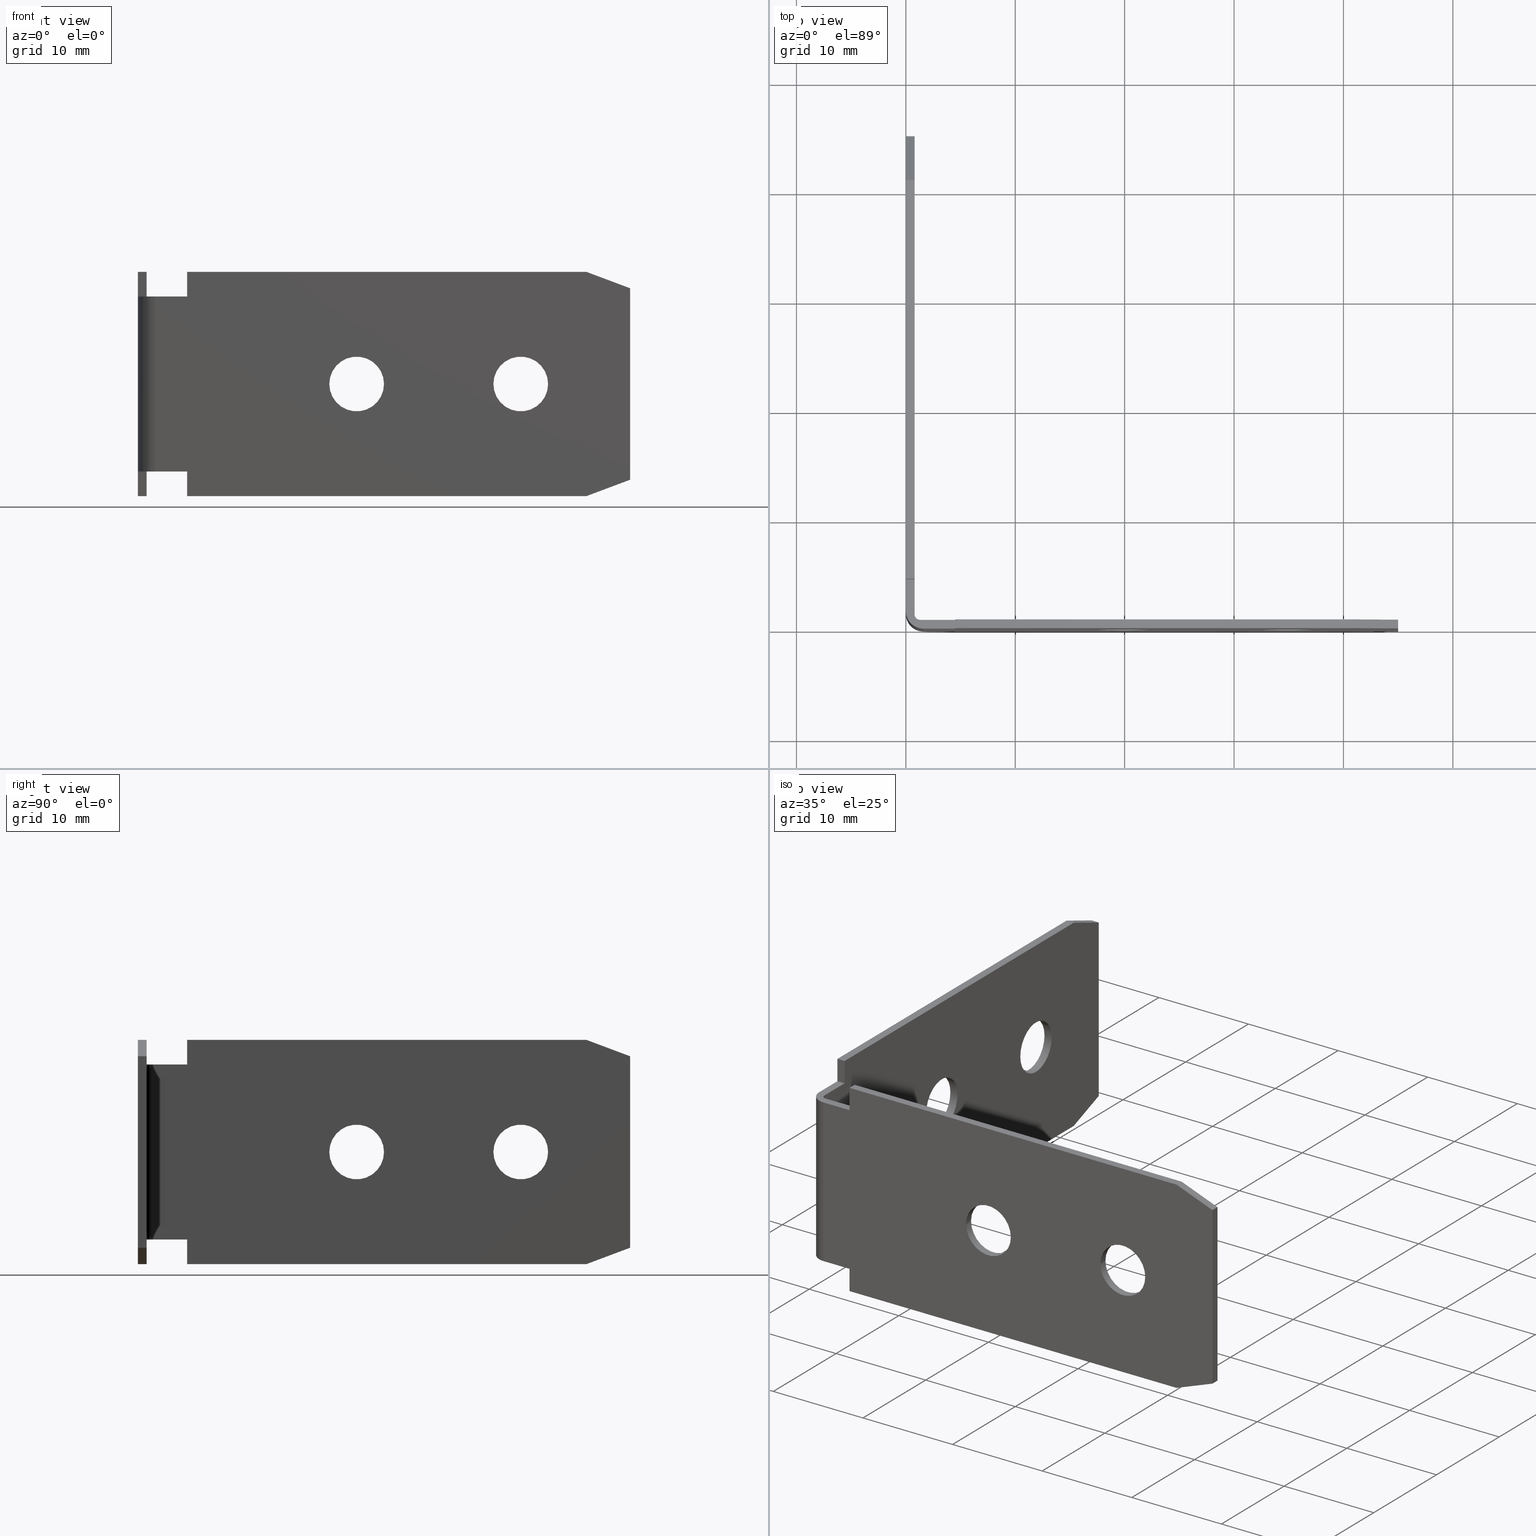
[diagram: canonical four-view strip — front | top / right | iso, engineering-drawing reading convention]
A machine part, canonical four-view strip (front | top / right | iso — engineering-drawing reading convention). The complete STEP part file that produces these views, byte-faithful:
ISO-10303-21;
HEADER;
/* Generated by software containing ST-Developer
 * from STEP Tools, Inc. (www.steptools.com) 
 */

FILE_DESCRIPTION(
/* description */ ('Befestigungslasche neu'),
/* implementation_level */ '2;1');

FILE_NAME(
/* name */ '100002675.stp',
/* time_stamp */ '2024-01-18T08:40:48+01:00',
/* author */ ('selema'),
/* organization */ (''),
/* preprocessor_version */ 'ST-DEVELOPER v20',
/* originating_system */ 'Autodesk Inventor 2024',
/* authorisation */ '');

FILE_SCHEMA (('AUTOMOTIVE_DESIGN { 1 0 10303 214 3 1 1 }'));
ENDSEC;

DATA;
#10=MECHANICAL_DESIGN_GEOMETRIC_PRESENTATION_REPRESENTATION('',(#13),#880);
#11=SHAPE_REPRESENTATION_RELATIONSHIP('SRR','None',#887,#12);
#12=ADVANCED_BREP_SHAPE_REPRESENTATION('',(#14),#879);
#13=STYLED_ITEM('',(#896),#14);
#14=MANIFOLD_SOLID_BREP('Volumenk\X\F6rper1',#531);
#15=FACE_BOUND('',#72,.T.);
#16=FACE_BOUND('',#73,.T.);
#17=FACE_BOUND('',#76,.T.);
#18=FACE_BOUND('',#77,.T.);
#19=FACE_BOUND('',#87,.T.);
#20=FACE_BOUND('',#88,.T.);
#21=FACE_BOUND('',#93,.T.);
#22=FACE_BOUND('',#94,.T.);
#23=PLANE('',#557);
#24=PLANE('',#559);
#25=PLANE('',#564);
#26=PLANE('',#575);
#27=PLANE('',#576);
#28=PLANE('',#577);
#29=PLANE('',#578);
#30=PLANE('',#579);
#31=PLANE('',#580);
#32=PLANE('',#581);
#33=PLANE('',#582);
#34=PLANE('',#583);
#35=PLANE('',#584);
#36=PLANE('',#585);
#37=PLANE('',#586);
#38=PLANE('',#587);
#39=PLANE('',#588);
#40=PLANE('',#589);
#41=PLANE('',#590);
#42=PLANE('',#591);
#43=FACE_OUTER_BOUND('',#69,.T.);
#44=FACE_OUTER_BOUND('',#70,.T.);
#45=FACE_OUTER_BOUND('',#71,.T.);
#46=FACE_OUTER_BOUND('',#74,.T.);
#47=FACE_OUTER_BOUND('',#75,.T.);
#48=FACE_OUTER_BOUND('',#78,.T.);
#49=FACE_OUTER_BOUND('',#79,.T.);
#50=FACE_OUTER_BOUND('',#80,.T.);
#51=FACE_OUTER_BOUND('',#81,.T.);
#52=FACE_OUTER_BOUND('',#82,.T.);
#53=FACE_OUTER_BOUND('',#83,.T.);
#54=FACE_OUTER_BOUND('',#84,.T.);
#55=FACE_OUTER_BOUND('',#85,.T.);
#56=FACE_OUTER_BOUND('',#86,.T.);
#57=FACE_OUTER_BOUND('',#89,.T.);
#58=FACE_OUTER_BOUND('',#90,.T.);
#59=FACE_OUTER_BOUND('',#91,.T.);
#60=FACE_OUTER_BOUND('',#92,.T.);
#61=FACE_OUTER_BOUND('',#95,.T.);
#62=FACE_OUTER_BOUND('',#96,.T.);
#63=FACE_OUTER_BOUND('',#97,.T.);
#64=FACE_OUTER_BOUND('',#98,.T.);
#65=FACE_OUTER_BOUND('',#99,.T.);
#66=FACE_OUTER_BOUND('',#100,.T.);
#67=FACE_OUTER_BOUND('',#101,.T.);
#68=FACE_OUTER_BOUND('',#102,.T.);
#69=EDGE_LOOP('',(#355,#356,#357,#358));
#70=EDGE_LOOP('',(#359,#360,#361,#362,#363,#364,#365,#366));
#71=EDGE_LOOP('',(#367,#368,#369,#370,#371,#372,#373,#374,#375,#376));
#72=EDGE_LOOP('',(#377));
#73=EDGE_LOOP('',(#378));
#74=EDGE_LOOP('',(#379,#380,#381,#382));
#75=EDGE_LOOP('',(#383,#384,#385,#386,#387,#388,#389,#390,#391,#392));
#76=EDGE_LOOP('',(#393));
#77=EDGE_LOOP('',(#394));
#78=EDGE_LOOP('',(#395,#396,#397,#398));
#79=EDGE_LOOP('',(#399,#400,#401,#402));
#80=EDGE_LOOP('',(#403,#404,#405,#406));
#81=EDGE_LOOP('',(#407,#408,#409,#410));
#82=EDGE_LOOP('',(#411,#412,#413,#414));
#83=EDGE_LOOP('',(#415,#416,#417,#418));
#84=EDGE_LOOP('',(#419,#420,#421,#422));
#85=EDGE_LOOP('',(#423,#424,#425,#426));
#86=EDGE_LOOP('',(#427,#428,#429,#430,#431,#432,#433,#434,#435,#436));
#87=EDGE_LOOP('',(#437));
#88=EDGE_LOOP('',(#438));
#89=EDGE_LOOP('',(#439,#440,#441,#442));
#90=EDGE_LOOP('',(#443,#444,#445,#446));
#91=EDGE_LOOP('',(#447,#448,#449,#450));
#92=EDGE_LOOP('',(#451,#452,#453,#454,#455,#456,#457,#458,#459,#460));
#93=EDGE_LOOP('',(#461));
#94=EDGE_LOOP('',(#462));
#95=EDGE_LOOP('',(#463,#464,#465,#466,#467,#468,#469,#470));
#96=EDGE_LOOP('',(#471,#472,#473,#474));
#97=EDGE_LOOP('',(#475,#476,#477,#478));
#98=EDGE_LOOP('',(#479,#480,#481,#482));
#99=EDGE_LOOP('',(#483,#484,#485,#486));
#100=EDGE_LOOP('',(#487,#488,#489,#490));
#101=EDGE_LOOP('',(#491,#492,#493,#494));
#102=EDGE_LOOP('',(#495,#496,#497,#498));
#103=LINE('',#736,#163);
#104=LINE('',#739,#164);
#105=LINE('',#742,#165);
#106=LINE('',#744,#166);
#107=LINE('',#746,#167);
#108=LINE('',#750,#168);
#109=LINE('',#752,#169);
#110=LINE('',#753,#170);
#111=LINE('',#756,#171);
#112=LINE('',#758,#172);
#113=LINE('',#760,#173);
#114=LINE('',#762,#174);
#115=LINE('',#764,#175);
#116=LINE('',#766,#176);
#117=LINE('',#768,#177);
#118=LINE('',#769,#178);
#119=LINE('',#776,#179);
#120=LINE('',#779,#180);
#121=LINE('',#782,#181);
#122=LINE('',#784,#182);
#123=LINE('',#786,#183);
#124=LINE('',#788,#184);
#125=LINE('',#790,#185);
#126=LINE('',#792,#186);
#127=LINE('',#794,#187);
#128=LINE('',#795,#188);
#129=LINE('',#801,#189);
#130=LINE('',#803,#190);
#131=LINE('',#808,#191);
#132=LINE('',#814,#192);
#133=LINE('',#817,#193);
#134=LINE('',#819,#194);
#135=LINE('',#820,#195);
#136=LINE('',#822,#196);
#137=LINE('',#823,#197);
#138=LINE('',#825,#198);
#139=LINE('',#826,#199);
#140=LINE('',#829,#200);
#141=LINE('',#831,#201);
#142=LINE('',#833,#202);
#143=LINE('',#835,#203);
#144=LINE('',#837,#204);
#145=LINE('',#839,#205);
#146=LINE('',#841,#206);
#147=LINE('',#842,#207);
#148=LINE('',#848,#208);
#149=LINE('',#850,#209);
#150=LINE('',#852,#210);
#151=LINE('',#854,#211);
#152=LINE('',#856,#212);
#153=LINE('',#858,#213);
#154=LINE('',#860,#214);
#155=LINE('',#861,#215);
#156=LINE('',#863,#216);
#157=LINE('',#865,#217);
#158=LINE('',#867,#218);
#159=LINE('',#868,#219);
#160=LINE('',#870,#220);
#161=LINE('',#871,#221);
#162=LINE('',#873,#222);
#163=VECTOR('',#598,10.);
#164=VECTOR('',#601,10.);
#165=VECTOR('',#604,10.);
#166=VECTOR('',#605,10.);
#167=VECTOR('',#606,10.);
#168=VECTOR('',#609,10.);
#169=VECTOR('',#610,10.);
#170=VECTOR('',#611,10.);
#171=VECTOR('',#614,10.);
#172=VECTOR('',#615,10.);
#173=VECTOR('',#616,10.);
#174=VECTOR('',#617,10.);
#175=VECTOR('',#618,10.);
#176=VECTOR('',#619,10.);
#177=VECTOR('',#620,10.);
#178=VECTOR('',#621,10.);
#179=VECTOR('',#628,10.);
#180=VECTOR('',#631,10.);
#181=VECTOR('',#634,10.);
#182=VECTOR('',#635,10.);
#183=VECTOR('',#636,10.);
#184=VECTOR('',#637,10.);
#185=VECTOR('',#638,10.);
#186=VECTOR('',#639,10.);
#187=VECTOR('',#640,10.);
#188=VECTOR('',#641,10.);
#189=VECTOR('',#648,2.5);
#190=VECTOR('',#651,2.5);
#191=VECTOR('',#656,2.5);
#192=VECTOR('',#663,2.5);
#193=VECTOR('',#668,10.);
#194=VECTOR('',#671,10.);
#195=VECTOR('',#672,10.);
#196=VECTOR('',#675,10.);
#197=VECTOR('',#676,10.);
#198=VECTOR('',#679,10.);
#199=VECTOR('',#680,10.);
#200=VECTOR('',#683,10.);
#201=VECTOR('',#684,10.);
#202=VECTOR('',#685,10.);
#203=VECTOR('',#686,10.);
#204=VECTOR('',#687,10.);
#205=VECTOR('',#688,10.);
#206=VECTOR('',#689,10.);
#207=VECTOR('',#690,10.);
#208=VECTOR('',#699,10.);
#209=VECTOR('',#700,10.);
#210=VECTOR('',#701,10.);
#211=VECTOR('',#702,10.);
#212=VECTOR('',#703,10.);
#213=VECTOR('',#704,10.);
#214=VECTOR('',#705,10.);
#215=VECTOR('',#706,10.);
#216=VECTOR('',#709,10.);
#217=VECTOR('',#712,10.);
#218=VECTOR('',#715,10.);
#219=VECTOR('',#716,10.);
#220=VECTOR('',#719,10.);
#221=VECTOR('',#720,10.);
#222=VECTOR('',#723,10.);
#223=CIRCLE('',#555,1.6);
#224=CIRCLE('',#556,1.6);
#225=CIRCLE('',#558,0.5);
#226=CIRCLE('',#560,2.5);
#227=CIRCLE('',#561,2.5);
#228=CIRCLE('',#563,0.5);
#229=CIRCLE('',#565,2.5);
#230=CIRCLE('',#566,2.5);
#231=CIRCLE('',#570,2.5);
#232=CIRCLE('',#571,2.5);
#233=CIRCLE('',#573,2.5);
#234=CIRCLE('',#574,2.5);
#235=VERTEX_POINT('',#732);
#236=VERTEX_POINT('',#733);
#237=VERTEX_POINT('',#735);
#238=VERTEX_POINT('',#737);
#239=VERTEX_POINT('',#741);
#240=VERTEX_POINT('',#743);
#241=VERTEX_POINT('',#745);
#242=VERTEX_POINT('',#747);
#243=VERTEX_POINT('',#749);
#244=VERTEX_POINT('',#751);
#245=VERTEX_POINT('',#755);
#246=VERTEX_POINT('',#757);
#247=VERTEX_POINT('',#759);
#248=VERTEX_POINT('',#761);
#249=VERTEX_POINT('',#763);
#250=VERTEX_POINT('',#765);
#251=VERTEX_POINT('',#767);
#252=VERTEX_POINT('',#770);
#253=VERTEX_POINT('',#772);
#254=VERTEX_POINT('',#775);
#255=VERTEX_POINT('',#777);
#256=VERTEX_POINT('',#781);
#257=VERTEX_POINT('',#783);
#258=VERTEX_POINT('',#785);
#259=VERTEX_POINT('',#787);
#260=VERTEX_POINT('',#789);
#261=VERTEX_POINT('',#791);
#262=VERTEX_POINT('',#793);
#263=VERTEX_POINT('',#796);
#264=VERTEX_POINT('',#798);
#265=VERTEX_POINT('',#805);
#266=VERTEX_POINT('',#807);
#267=VERTEX_POINT('',#811);
#268=VERTEX_POINT('',#813);
#269=VERTEX_POINT('',#828);
#270=VERTEX_POINT('',#830);
#271=VERTEX_POINT('',#832);
#272=VERTEX_POINT('',#834);
#273=VERTEX_POINT('',#836);
#274=VERTEX_POINT('',#838);
#275=VERTEX_POINT('',#840);
#276=VERTEX_POINT('',#847);
#277=VERTEX_POINT('',#849);
#278=VERTEX_POINT('',#851);
#279=VERTEX_POINT('',#853);
#280=VERTEX_POINT('',#855);
#281=VERTEX_POINT('',#857);
#282=VERTEX_POINT('',#859);
#283=EDGE_CURVE('',#235,#236,#223,.T.);
#284=EDGE_CURVE('',#236,#237,#103,.T.);
#285=EDGE_CURVE('',#237,#238,#224,.T.);
#286=EDGE_CURVE('',#238,#235,#104,.T.);
#287=EDGE_CURVE('',#239,#235,#105,.T.);
#288=EDGE_CURVE('',#240,#239,#106,.T.);
#289=EDGE_CURVE('',#241,#240,#107,.T.);
#290=EDGE_CURVE('',#242,#241,#225,.T.);
#291=EDGE_CURVE('',#243,#242,#108,.T.);
#292=EDGE_CURVE('',#243,#244,#109,.T.);
#293=EDGE_CURVE('',#236,#244,#110,.T.);
#294=EDGE_CURVE('',#238,#245,#111,.T.);
#295=EDGE_CURVE('',#245,#246,#112,.T.);
#296=EDGE_CURVE('',#247,#246,#113,.T.);
#297=EDGE_CURVE('',#247,#248,#114,.T.);
#298=EDGE_CURVE('',#249,#248,#115,.T.);
#299=EDGE_CURVE('',#249,#250,#116,.T.);
#300=EDGE_CURVE('',#251,#250,#117,.T.);
#301=EDGE_CURVE('',#251,#239,#118,.T.);
#302=EDGE_CURVE('',#252,#252,#226,.T.);
#303=EDGE_CURVE('',#253,#253,#227,.T.);
#304=EDGE_CURVE('',#241,#254,#119,.T.);
#305=EDGE_CURVE('',#254,#255,#228,.T.);
#306=EDGE_CURVE('',#255,#242,#120,.T.);
#307=EDGE_CURVE('',#240,#256,#121,.T.);
#308=EDGE_CURVE('',#257,#256,#122,.T.);
#309=EDGE_CURVE('',#257,#258,#123,.T.);
#310=EDGE_CURVE('',#259,#258,#124,.T.);
#311=EDGE_CURVE('',#259,#260,#125,.T.);
#312=EDGE_CURVE('',#261,#260,#126,.T.);
#313=EDGE_CURVE('',#261,#262,#127,.T.);
#314=EDGE_CURVE('',#262,#254,#128,.T.);
#315=EDGE_CURVE('',#263,#263,#229,.T.);
#316=EDGE_CURVE('',#264,#264,#230,.T.);
#317=EDGE_CURVE('',#253,#264,#129,.T.);
#318=EDGE_CURVE('',#252,#263,#130,.T.);
#319=EDGE_CURVE('',#265,#265,#231,.T.);
#320=EDGE_CURVE('',#265,#266,#131,.T.);
#321=EDGE_CURVE('',#266,#266,#232,.T.);
#322=EDGE_CURVE('',#267,#267,#233,.T.);
#323=EDGE_CURVE('',#267,#268,#132,.T.);
#324=EDGE_CURVE('',#268,#268,#234,.T.);
#325=EDGE_CURVE('',#256,#251,#133,.T.);
#326=EDGE_CURVE('',#262,#245,#134,.T.);
#327=EDGE_CURVE('',#246,#261,#135,.T.);
#328=EDGE_CURVE('',#260,#247,#136,.T.);
#329=EDGE_CURVE('',#248,#259,#137,.T.);
#330=EDGE_CURVE('',#258,#249,#138,.T.);
#331=EDGE_CURVE('',#250,#257,#139,.T.);
#332=EDGE_CURVE('',#244,#269,#140,.T.);
#333=EDGE_CURVE('',#269,#270,#141,.T.);
#334=EDGE_CURVE('',#270,#271,#142,.T.);
#335=EDGE_CURVE('',#271,#272,#143,.T.);
#336=EDGE_CURVE('',#272,#273,#144,.T.);
#337=EDGE_CURVE('',#273,#274,#145,.T.);
#338=EDGE_CURVE('',#274,#275,#146,.T.);
#339=EDGE_CURVE('',#275,#237,#147,.T.);
#340=EDGE_CURVE('',#255,#276,#148,.T.);
#341=EDGE_CURVE('',#276,#277,#149,.T.);
#342=EDGE_CURVE('',#277,#278,#150,.T.);
#343=EDGE_CURVE('',#278,#279,#151,.T.);
#344=EDGE_CURVE('',#279,#280,#152,.T.);
#345=EDGE_CURVE('',#280,#281,#153,.T.);
#346=EDGE_CURVE('',#281,#282,#154,.T.);
#347=EDGE_CURVE('',#282,#243,#155,.T.);
#348=EDGE_CURVE('',#276,#275,#156,.T.);
#349=EDGE_CURVE('',#269,#282,#157,.T.);
#350=EDGE_CURVE('',#281,#270,#158,.T.);
#351=EDGE_CURVE('',#271,#280,#159,.T.);
#352=EDGE_CURVE('',#279,#272,#160,.T.);
#353=EDGE_CURVE('',#273,#278,#161,.T.);
#354=EDGE_CURVE('',#277,#274,#162,.T.);
#355=ORIENTED_EDGE('',*,*,#283,.T.);
#356=ORIENTED_EDGE('',*,*,#284,.T.);
#357=ORIENTED_EDGE('',*,*,#285,.T.);
#358=ORIENTED_EDGE('',*,*,#286,.T.);
#359=ORIENTED_EDGE('',*,*,#283,.F.);
#360=ORIENTED_EDGE('',*,*,#287,.F.);
#361=ORIENTED_EDGE('',*,*,#288,.F.);
#362=ORIENTED_EDGE('',*,*,#289,.F.);
#363=ORIENTED_EDGE('',*,*,#290,.F.);
#364=ORIENTED_EDGE('',*,*,#291,.F.);
#365=ORIENTED_EDGE('',*,*,#292,.T.);
#366=ORIENTED_EDGE('',*,*,#293,.F.);
#367=ORIENTED_EDGE('',*,*,#286,.F.);
#368=ORIENTED_EDGE('',*,*,#294,.T.);
#369=ORIENTED_EDGE('',*,*,#295,.T.);
#370=ORIENTED_EDGE('',*,*,#296,.F.);
#371=ORIENTED_EDGE('',*,*,#297,.T.);
#372=ORIENTED_EDGE('',*,*,#298,.F.);
#373=ORIENTED_EDGE('',*,*,#299,.T.);
#374=ORIENTED_EDGE('',*,*,#300,.F.);
#375=ORIENTED_EDGE('',*,*,#301,.T.);
#376=ORIENTED_EDGE('',*,*,#287,.T.);
#377=ORIENTED_EDGE('',*,*,#302,.T.);
#378=ORIENTED_EDGE('',*,*,#303,.T.);
#379=ORIENTED_EDGE('',*,*,#290,.T.);
#380=ORIENTED_EDGE('',*,*,#304,.T.);
#381=ORIENTED_EDGE('',*,*,#305,.T.);
#382=ORIENTED_EDGE('',*,*,#306,.T.);
#383=ORIENTED_EDGE('',*,*,#304,.F.);
#384=ORIENTED_EDGE('',*,*,#289,.T.);
#385=ORIENTED_EDGE('',*,*,#307,.T.);
#386=ORIENTED_EDGE('',*,*,#308,.F.);
#387=ORIENTED_EDGE('',*,*,#309,.T.);
#388=ORIENTED_EDGE('',*,*,#310,.F.);
#389=ORIENTED_EDGE('',*,*,#311,.T.);
#390=ORIENTED_EDGE('',*,*,#312,.F.);
#391=ORIENTED_EDGE('',*,*,#313,.T.);
#392=ORIENTED_EDGE('',*,*,#314,.T.);
#393=ORIENTED_EDGE('',*,*,#315,.T.);
#394=ORIENTED_EDGE('',*,*,#316,.T.);
#395=ORIENTED_EDGE('',*,*,#303,.F.);
#396=ORIENTED_EDGE('',*,*,#317,.T.);
#397=ORIENTED_EDGE('',*,*,#316,.F.);
#398=ORIENTED_EDGE('',*,*,#317,.F.);
#399=ORIENTED_EDGE('',*,*,#302,.F.);
#400=ORIENTED_EDGE('',*,*,#318,.T.);
#401=ORIENTED_EDGE('',*,*,#315,.F.);
#402=ORIENTED_EDGE('',*,*,#318,.F.);
#403=ORIENTED_EDGE('',*,*,#319,.F.);
#404=ORIENTED_EDGE('',*,*,#320,.T.);
#405=ORIENTED_EDGE('',*,*,#321,.F.);
#406=ORIENTED_EDGE('',*,*,#320,.F.);
#407=ORIENTED_EDGE('',*,*,#322,.F.);
#408=ORIENTED_EDGE('',*,*,#323,.T.);
#409=ORIENTED_EDGE('',*,*,#324,.F.);
#410=ORIENTED_EDGE('',*,*,#323,.F.);
#411=ORIENTED_EDGE('',*,*,#301,.F.);
#412=ORIENTED_EDGE('',*,*,#325,.F.);
#413=ORIENTED_EDGE('',*,*,#307,.F.);
#414=ORIENTED_EDGE('',*,*,#288,.T.);
#415=ORIENTED_EDGE('',*,*,#295,.F.);
#416=ORIENTED_EDGE('',*,*,#326,.F.);
#417=ORIENTED_EDGE('',*,*,#313,.F.);
#418=ORIENTED_EDGE('',*,*,#327,.F.);
#419=ORIENTED_EDGE('',*,*,#297,.F.);
#420=ORIENTED_EDGE('',*,*,#328,.F.);
#421=ORIENTED_EDGE('',*,*,#311,.F.);
#422=ORIENTED_EDGE('',*,*,#329,.F.);
#423=ORIENTED_EDGE('',*,*,#299,.F.);
#424=ORIENTED_EDGE('',*,*,#330,.F.);
#425=ORIENTED_EDGE('',*,*,#309,.F.);
#426=ORIENTED_EDGE('',*,*,#331,.F.);
#427=ORIENTED_EDGE('',*,*,#284,.F.);
#428=ORIENTED_EDGE('',*,*,#293,.T.);
#429=ORIENTED_EDGE('',*,*,#332,.T.);
#430=ORIENTED_EDGE('',*,*,#333,.T.);
#431=ORIENTED_EDGE('',*,*,#334,.T.);
#432=ORIENTED_EDGE('',*,*,#335,.T.);
#433=ORIENTED_EDGE('',*,*,#336,.T.);
#434=ORIENTED_EDGE('',*,*,#337,.T.);
#435=ORIENTED_EDGE('',*,*,#338,.T.);
#436=ORIENTED_EDGE('',*,*,#339,.T.);
#437=ORIENTED_EDGE('',*,*,#319,.T.);
#438=ORIENTED_EDGE('',*,*,#322,.T.);
#439=ORIENTED_EDGE('',*,*,#327,.T.);
#440=ORIENTED_EDGE('',*,*,#312,.T.);
#441=ORIENTED_EDGE('',*,*,#328,.T.);
#442=ORIENTED_EDGE('',*,*,#296,.T.);
#443=ORIENTED_EDGE('',*,*,#329,.T.);
#444=ORIENTED_EDGE('',*,*,#310,.T.);
#445=ORIENTED_EDGE('',*,*,#330,.T.);
#446=ORIENTED_EDGE('',*,*,#298,.T.);
#447=ORIENTED_EDGE('',*,*,#325,.T.);
#448=ORIENTED_EDGE('',*,*,#300,.T.);
#449=ORIENTED_EDGE('',*,*,#331,.T.);
#450=ORIENTED_EDGE('',*,*,#308,.T.);
#451=ORIENTED_EDGE('',*,*,#306,.F.);
#452=ORIENTED_EDGE('',*,*,#340,.T.);
#453=ORIENTED_EDGE('',*,*,#341,.T.);
#454=ORIENTED_EDGE('',*,*,#342,.T.);
#455=ORIENTED_EDGE('',*,*,#343,.T.);
#456=ORIENTED_EDGE('',*,*,#344,.T.);
#457=ORIENTED_EDGE('',*,*,#345,.T.);
#458=ORIENTED_EDGE('',*,*,#346,.T.);
#459=ORIENTED_EDGE('',*,*,#347,.T.);
#460=ORIENTED_EDGE('',*,*,#291,.T.);
#461=ORIENTED_EDGE('',*,*,#321,.T.);
#462=ORIENTED_EDGE('',*,*,#324,.T.);
#463=ORIENTED_EDGE('',*,*,#285,.F.);
#464=ORIENTED_EDGE('',*,*,#339,.F.);
#465=ORIENTED_EDGE('',*,*,#348,.F.);
#466=ORIENTED_EDGE('',*,*,#340,.F.);
#467=ORIENTED_EDGE('',*,*,#305,.F.);
#468=ORIENTED_EDGE('',*,*,#314,.F.);
#469=ORIENTED_EDGE('',*,*,#326,.T.);
#470=ORIENTED_EDGE('',*,*,#294,.F.);
#471=ORIENTED_EDGE('',*,*,#332,.F.);
#472=ORIENTED_EDGE('',*,*,#292,.F.);
#473=ORIENTED_EDGE('',*,*,#347,.F.);
#474=ORIENTED_EDGE('',*,*,#349,.F.);
#475=ORIENTED_EDGE('',*,*,#334,.F.);
#476=ORIENTED_EDGE('',*,*,#350,.F.);
#477=ORIENTED_EDGE('',*,*,#345,.F.);
#478=ORIENTED_EDGE('',*,*,#351,.F.);
#479=ORIENTED_EDGE('',*,*,#336,.F.);
#480=ORIENTED_EDGE('',*,*,#352,.F.);
#481=ORIENTED_EDGE('',*,*,#343,.F.);
#482=ORIENTED_EDGE('',*,*,#353,.F.);
#483=ORIENTED_EDGE('',*,*,#338,.F.);
#484=ORIENTED_EDGE('',*,*,#354,.F.);
#485=ORIENTED_EDGE('',*,*,#341,.F.);
#486=ORIENTED_EDGE('',*,*,#348,.T.);
#487=ORIENTED_EDGE('',*,*,#349,.T.);
#488=ORIENTED_EDGE('',*,*,#346,.F.);
#489=ORIENTED_EDGE('',*,*,#350,.T.);
#490=ORIENTED_EDGE('',*,*,#333,.F.);
#491=ORIENTED_EDGE('',*,*,#351,.T.);
#492=ORIENTED_EDGE('',*,*,#344,.F.);
#493=ORIENTED_EDGE('',*,*,#352,.T.);
#494=ORIENTED_EDGE('',*,*,#335,.F.);
#495=ORIENTED_EDGE('',*,*,#353,.T.);
#496=ORIENTED_EDGE('',*,*,#342,.F.);
#497=ORIENTED_EDGE('',*,*,#354,.T.);
#498=ORIENTED_EDGE('',*,*,#337,.F.);
#499=CYLINDRICAL_SURFACE('',#554,1.6);
#500=CYLINDRICAL_SURFACE('',#562,0.5);
#501=CYLINDRICAL_SURFACE('',#567,2.5);
#502=CYLINDRICAL_SURFACE('',#568,2.5);
#503=CYLINDRICAL_SURFACE('',#569,2.5);
#504=CYLINDRICAL_SURFACE('',#572,2.5);
#505=ADVANCED_FACE('',(#43),#499,.T.);
#506=ADVANCED_FACE('',(#44),#23,.F.);
#507=ADVANCED_FACE('',(#45,#15,#16),#24,.T.);
#508=ADVANCED_FACE('',(#46),#500,.F.);
#509=ADVANCED_FACE('',(#47,#17,#18),#25,.F.);
#510=ADVANCED_FACE('',(#48),#501,.F.);
#511=ADVANCED_FACE('',(#49),#502,.F.);
#512=ADVANCED_FACE('',(#50),#503,.F.);
#513=ADVANCED_FACE('',(#51),#504,.F.);
#514=ADVANCED_FACE('',(#52),#26,.T.);
#515=ADVANCED_FACE('',(#53),#27,.T.);
#516=ADVANCED_FACE('',(#54),#28,.T.);
#517=ADVANCED_FACE('',(#55),#29,.T.);
#518=ADVANCED_FACE('',(#56,#19,#20),#30,.T.);
#519=ADVANCED_FACE('',(#57),#31,.F.);
#520=ADVANCED_FACE('',(#58),#32,.F.);
#521=ADVANCED_FACE('',(#59),#33,.T.);
#522=ADVANCED_FACE('',(#60,#21,#22),#34,.T.);
#523=ADVANCED_FACE('',(#61),#35,.F.);
#524=ADVANCED_FACE('',(#62),#36,.F.);
#525=ADVANCED_FACE('',(#63),#37,.F.);
#526=ADVANCED_FACE('',(#64),#38,.F.);
#527=ADVANCED_FACE('',(#65),#39,.F.);
#528=ADVANCED_FACE('',(#66),#40,.F.);
#529=ADVANCED_FACE('',(#67),#41,.T.);
#530=ADVANCED_FACE('',(#68),#42,.T.);
#531=CLOSED_SHELL('',(#505,#506,#507,#508,#509,#510,#511,#512,#513,#514,
#515,#516,#517,#518,#519,#520,#521,#522,#523,#524,#525,#526,#527,#528,#529,
#530));
#532=DERIVED_UNIT_ELEMENT(#535,1.);
#533=DERIVED_UNIT_ELEMENT(#882,-3.);
#534=DIMENSIONAL_EXPONENTS(0.,1.,0.,0.,0.,0.,0.);
#535=(
CONVERSION_BASED_UNIT('gram',#537)
MASS_UNIT()
NAMED_UNIT(#534)
);
#536=(
MASS_UNIT()
NAMED_UNIT(*)
SI_UNIT(.KILO.,.GRAM.)
);
#537=MASS_MEASURE_WITH_UNIT(MASS_MEASURE(0.001),#536);
#538=DERIVED_UNIT((#532,#533));
#539=MEASURE_REPRESENTATION_ITEM('density measure',
POSITIVE_RATIO_MEASURE(8.03),#538);
#540=PROPERTY_DEFINITION_REPRESENTATION(#545,#542);
#541=PROPERTY_DEFINITION_REPRESENTATION(#546,#543);
#542=REPRESENTATION('material name',(#544),#879);
#543=REPRESENTATION('density',(#539),#879);
#544=DESCRIPTIVE_REPRESENTATION_ITEM(
'Nichtrostender Stahl (austenitisch)',
'Nichtrostender Stahl (austenitisch)');
#545=PROPERTY_DEFINITION('material property','material name',#889);
#546=PROPERTY_DEFINITION('material property','density of part',#889);
#547=DATE_TIME_ROLE('creation_date');
#548=APPLIED_DATE_AND_TIME_ASSIGNMENT(#549,#547,(#889));
#549=DATE_AND_TIME(#550,#551);
#550=CALENDAR_DATE(2007,4,1);
#551=LOCAL_TIME(0,0,0.,#552);
#552=COORDINATED_UNIVERSAL_TIME_OFFSET(0,0,.BEHIND.);
#553=AXIS2_PLACEMENT_3D('',#730,#592,#593);
#554=AXIS2_PLACEMENT_3D('',#731,#594,#595);
#555=AXIS2_PLACEMENT_3D('',#734,#596,#597);
#556=AXIS2_PLACEMENT_3D('',#738,#599,#600);
#557=AXIS2_PLACEMENT_3D('',#740,#602,#603);
#558=AXIS2_PLACEMENT_3D('',#748,#607,#608);
#559=AXIS2_PLACEMENT_3D('',#754,#612,#613);
#560=AXIS2_PLACEMENT_3D('',#771,#622,#623);
#561=AXIS2_PLACEMENT_3D('',#773,#624,#625);
#562=AXIS2_PLACEMENT_3D('',#774,#626,#627);
#563=AXIS2_PLACEMENT_3D('',#778,#629,#630);
#564=AXIS2_PLACEMENT_3D('',#780,#632,#633);
#565=AXIS2_PLACEMENT_3D('',#797,#642,#643);
#566=AXIS2_PLACEMENT_3D('',#799,#644,#645);
#567=AXIS2_PLACEMENT_3D('',#800,#646,#647);
#568=AXIS2_PLACEMENT_3D('',#802,#649,#650);
#569=AXIS2_PLACEMENT_3D('',#804,#652,#653);
#570=AXIS2_PLACEMENT_3D('',#806,#654,#655);
#571=AXIS2_PLACEMENT_3D('',#809,#657,#658);
#572=AXIS2_PLACEMENT_3D('',#810,#659,#660);
#573=AXIS2_PLACEMENT_3D('',#812,#661,#662);
#574=AXIS2_PLACEMENT_3D('',#815,#664,#665);
#575=AXIS2_PLACEMENT_3D('',#816,#666,#667);
#576=AXIS2_PLACEMENT_3D('',#818,#669,#670);
#577=AXIS2_PLACEMENT_3D('',#821,#673,#674);
#578=AXIS2_PLACEMENT_3D('',#824,#677,#678);
#579=AXIS2_PLACEMENT_3D('',#827,#681,#682);
#580=AXIS2_PLACEMENT_3D('',#843,#691,#692);
#581=AXIS2_PLACEMENT_3D('',#844,#693,#694);
#582=AXIS2_PLACEMENT_3D('',#845,#695,#696);
#583=AXIS2_PLACEMENT_3D('',#846,#697,#698);
#584=AXIS2_PLACEMENT_3D('',#862,#707,#708);
#585=AXIS2_PLACEMENT_3D('',#864,#710,#711);
#586=AXIS2_PLACEMENT_3D('',#866,#713,#714);
#587=AXIS2_PLACEMENT_3D('',#869,#717,#718);
#588=AXIS2_PLACEMENT_3D('',#872,#721,#722);
#589=AXIS2_PLACEMENT_3D('',#874,#724,#725);
#590=AXIS2_PLACEMENT_3D('',#875,#726,#727);
#591=AXIS2_PLACEMENT_3D('',#876,#728,#729);
#592=DIRECTION('axis',(0.,0.,1.));
#593=DIRECTION('refdir',(1.,0.,0.));
#594=DIRECTION('center_axis',(0.,0.,-1.));
#595=DIRECTION('ref_axis',(-0.707106781186548,-0.707106781186547,0.));
#596=DIRECTION('center_axis',(0.,0.,1.));
#597=DIRECTION('ref_axis',(-0.707106781186548,-0.707106781186547,0.));
#598=DIRECTION('',(0.,0.,1.));
#599=DIRECTION('center_axis',(-2.46716227694479E-16,-2.58692812283125E-32,
-1.));
#600=DIRECTION('ref_axis',(-0.707106781186548,-0.707106781186547,0.));
#601=DIRECTION('',(0.,0.,-1.));
#602=DIRECTION('center_axis',(0.,0.,1.));
#603=DIRECTION('ref_axis',(1.,0.,0.));
#604=DIRECTION('',(0.,-1.,0.));
#605=DIRECTION('',(-1.,3.26899001695185E-16,0.));
#606=DIRECTION('',(3.26899001695185E-16,1.,0.));
#607=DIRECTION('center_axis',(0.,0.,-1.));
#608=DIRECTION('ref_axis',(-0.707106781186548,-0.707106781186547,0.));
#609=DIRECTION('',(-1.,-1.04854396770154E-16,0.));
#610=DIRECTION('',(1.04854396770154E-16,-1.,0.));
#611=DIRECTION('',(1.,1.72701359386135E-16,0.));
#612=DIRECTION('center_axis',(-1.,0.,0.));
#613=DIRECTION('ref_axis',(0.,0.,1.));
#614=DIRECTION('',(0.,1.,-2.46716227694479E-16));
#615=DIRECTION('',(0.,0.,1.));
#616=DIRECTION('',(-3.94745964311167E-16,-1.,0.));
#617=DIRECTION('',(0.,0.936329177569045,-0.351123441588391));
#618=DIRECTION('',(0.,0.,1.));
#619=DIRECTION('',(0.,-0.936329177569045,-0.351123441588391));
#620=DIRECTION('',(3.94745964311167E-16,1.,0.));
#621=DIRECTION('',(0.,1.48029736616687E-15,1.));
#622=DIRECTION('center_axis',(1.,0.,0.));
#623=DIRECTION('ref_axis',(3.94745964311167E-16,1.,0.));
#624=DIRECTION('center_axis',(1.,0.,0.));
#625=DIRECTION('ref_axis',(3.94745964311167E-16,1.,0.));
#626=DIRECTION('center_axis',(0.,0.,1.));
#627=DIRECTION('ref_axis',(-0.707106781186548,-0.707106781186547,0.));
#628=DIRECTION('',(0.,0.,1.));
#629=DIRECTION('center_axis',(2.46716227694479E-16,2.58692812283125E-32,
1.));
#630=DIRECTION('ref_axis',(-0.707106781186548,-0.707106781186547,0.));
#631=DIRECTION('',(0.,0.,-1.));
#632=DIRECTION('center_axis',(-1.,3.26899001695185E-16,0.));
#633=DIRECTION('ref_axis',(0.,0.,1.));
#634=DIRECTION('',(-4.83907731211963E-31,-1.48029736616687E-15,-1.));
#635=DIRECTION('',(-3.26899001695185E-16,-1.,0.));
#636=DIRECTION('',(3.06085073405394E-16,0.936329177569045,0.351123441588391));
#637=DIRECTION('',(0.,0.,-1.));
#638=DIRECTION('',(-3.06085073405394E-16,-0.936329177569045,0.351123441588391));
#639=DIRECTION('',(3.26899001695185E-16,1.,0.));
#640=DIRECTION('',(0.,0.,-1.));
#641=DIRECTION('',(-3.26899001695185E-16,-1.,2.46716227694479E-16));
#642=DIRECTION('center_axis',(-1.,3.26899001695185E-16,0.));
#643=DIRECTION('ref_axis',(3.94745964311167E-16,1.,0.));
#644=DIRECTION('center_axis',(-1.,3.26899001695185E-16,0.));
#645=DIRECTION('ref_axis',(3.94745964311167E-16,1.,0.));
#646=DIRECTION('center_axis',(1.,-3.94745964311167E-16,0.));
#647=DIRECTION('ref_axis',(3.94745964311167E-16,1.,0.));
#648=DIRECTION('',(1.,-3.94745964311167E-16,0.));
#649=DIRECTION('center_axis',(1.,-3.94745964311167E-16,0.));
#650=DIRECTION('ref_axis',(3.94745964311167E-16,1.,0.));
#651=DIRECTION('',(1.,-3.94745964311167E-16,0.));
#652=DIRECTION('center_axis',(1.72701359386135E-16,-1.,0.));
#653=DIRECTION('ref_axis',(1.,1.72701359386135E-16,0.));
#654=DIRECTION('center_axis',(-1.72701359386135E-16,1.,0.));
#655=DIRECTION('ref_axis',(1.,1.72701359386135E-16,0.));
#656=DIRECTION('',(-1.72701359386135E-16,1.,0.));
#657=DIRECTION('center_axis',(1.04854396770154E-16,-1.,0.));
#658=DIRECTION('ref_axis',(1.,1.72701359386135E-16,0.));
#659=DIRECTION('center_axis',(1.72701359386135E-16,-1.,0.));
#660=DIRECTION('ref_axis',(1.,1.72701359386135E-16,0.));
#661=DIRECTION('center_axis',(-1.72701359386135E-16,1.,0.));
#662=DIRECTION('ref_axis',(1.,1.72701359386135E-16,0.));
#663=DIRECTION('',(-1.72701359386135E-16,1.,0.));
#664=DIRECTION('center_axis',(1.04854396770154E-16,-1.,0.));
#665=DIRECTION('ref_axis',(1.,1.72701359386135E-16,0.));
#666=DIRECTION('center_axis',(-3.26899001695185E-16,-1.,1.48029736616687E-15));
#667=DIRECTION('ref_axis',(-3.28692043842088E-31,-1.48029736616687E-15,
-1.));
#668=DIRECTION('',(-1.,3.26899001695185E-16,0.));
#669=DIRECTION('center_axis',(-3.26899001695185E-16,-1.,0.));
#670=DIRECTION('ref_axis',(0.,0.,-1.));
#671=DIRECTION('',(-1.,3.26899001695185E-16,0.));
#672=DIRECTION('',(1.,-3.26899001695185E-16,0.));
#673=DIRECTION('center_axis',(7.79650658674117E-17,0.351123441588391,0.936329177569045));
#674=DIRECTION('ref_axis',(-2.07906842313098E-16,-0.936329177569045,0.351123441588391));
#675=DIRECTION('',(-1.,2.22044604925031E-16,0.));
#676=DIRECTION('',(1.,-2.22044604925031E-16,0.));
#677=DIRECTION('center_axis',(7.79650658674116E-17,0.351123441588391,-0.936329177569045));
#678=DIRECTION('ref_axis',(2.07906842313098E-16,0.936329177569045,0.351123441588391));
#679=DIRECTION('',(-1.,2.22044604925031E-16,0.));
#680=DIRECTION('',(1.,-2.22044604925031E-16,0.));
#681=DIRECTION('center_axis',(1.72701359386135E-16,-1.,0.));
#682=DIRECTION('ref_axis',(0.,0.,-1.));
#683=DIRECTION('',(-1.48029736616687E-15,-2.55649367432735E-31,-1.));
#684=DIRECTION('',(1.,1.72701359386135E-16,0.));
#685=DIRECTION('',(0.936329177569045,1.61705321799076E-16,0.351123441588391));
#686=DIRECTION('',(0.,0.,1.));
#687=DIRECTION('',(-0.936329177569045,-1.61705321799076E-16,0.351123441588391));
#688=DIRECTION('',(-1.,-1.72701359386135E-16,0.));
#689=DIRECTION('',(0.,0.,-1.));
#690=DIRECTION('',(-1.,-1.72701359386135E-16,1.23259516440783E-31));
#691=DIRECTION('center_axis',(0.,0.,-1.));
#692=DIRECTION('ref_axis',(2.22044604925031E-16,1.,0.));
#693=DIRECTION('center_axis',(-2.22044604925031E-16,-1.,0.));
#694=DIRECTION('ref_axis',(0.,0.,-1.));
#695=DIRECTION('center_axis',(0.,0.,-1.));
#696=DIRECTION('ref_axis',(2.22044604925031E-16,1.,0.));
#697=DIRECTION('center_axis',(-1.04854396770154E-16,1.,0.));
#698=DIRECTION('ref_axis',(0.,0.,1.));
#699=DIRECTION('',(1.,1.04854396770154E-16,-2.46716227694479E-16));
#700=DIRECTION('',(0.,0.,1.));
#701=DIRECTION('',(1.,1.04854396770154E-16,0.));
#702=DIRECTION('',(0.936329177569045,9.81782310922963E-17,-0.351123441588391));
#703=DIRECTION('',(0.,0.,-1.));
#704=DIRECTION('',(-0.936329177569045,-9.81782310922963E-17,-0.351123441588391));
#705=DIRECTION('',(-1.,-1.04854396770154E-16,0.));
#706=DIRECTION('',(1.48029736616687E-15,1.55215687369875E-31,1.));
#707=DIRECTION('center_axis',(-2.46716227694479E-16,-2.58692812283125E-32,
-1.));
#708=DIRECTION('ref_axis',(-1.,0.,2.46716227694479E-16));
#709=DIRECTION('',(1.04854396770154E-16,-1.,0.));
#710=DIRECTION('center_axis',(1.,1.04854396770154E-16,-1.48029736616687E-15));
#711=DIRECTION('ref_axis',(-1.48029736616687E-15,0.,-1.));
#712=DIRECTION('',(-1.04854396770154E-16,1.,0.));
#713=DIRECTION('center_axis',(-0.351123441588391,0.,0.936329177569045));
#714=DIRECTION('ref_axis',(0.936329177569045,0.,0.351123441588391));
#715=DIRECTION('',(0.,-1.,0.));
#716=DIRECTION('',(0.,1.,0.));
#717=DIRECTION('center_axis',(-0.351123441588391,0.,-0.936329177569045));
#718=DIRECTION('ref_axis',(-0.936329177569045,0.,0.351123441588391));
#719=DIRECTION('',(0.,-1.,0.));
#720=DIRECTION('',(0.,1.,0.));
#721=DIRECTION('center_axis',(1.,1.04854396770154E-16,0.));
#722=DIRECTION('ref_axis',(0.,0.,-1.));
#723=DIRECTION('',(1.04854396770154E-16,-1.,0.));
#724=DIRECTION('center_axis',(0.,0.,1.));
#725=DIRECTION('ref_axis',(1.,0.,0.));
#726=DIRECTION('center_axis',(1.,0.,0.));
#727=DIRECTION('ref_axis',(0.,0.,-1.));
#728=DIRECTION('center_axis',(0.,0.,1.));
#729=DIRECTION('ref_axis',(1.,0.,0.));
#730=CARTESIAN_POINT('',(0.,0.,0.));
#731=CARTESIAN_POINT('Origin',(1.6,1.59999999999999,0.));
#732=CARTESIAN_POINT('',(0.,1.59999999999999,-8.));
#733=CARTESIAN_POINT('',(1.6,-7.49523899735828E-15,-8.));
#734=CARTESIAN_POINT('Origin',(1.6,1.59999999999999,-8.));
#735=CARTESIAN_POINT('',(1.6,-7.56431954111273E-15,8.));
#736=CARTESIAN_POINT('',(1.6,-7.49400541621981E-15,0.));
#737=CARTESIAN_POINT('',(0.,1.59999999999999,8.));
#738=CARTESIAN_POINT('Origin',(1.6,1.59999999999999,8.));
#739=CARTESIAN_POINT('',(0.,1.59999999999999,0.));
#740=CARTESIAN_POINT('Origin',(-6.88863824520386E-16,0.799999999999992,
-8.));
#741=CARTESIAN_POINT('',(1.83186799063151E-15,4.49999999999999,-8.));
#742=CARTESIAN_POINT('',(0.,-8.2048109266063E-15,-8.));
#743=CARTESIAN_POINT('',(0.800000000000002,4.49999999999999,-8.));
#744=CARTESIAN_POINT('',(0.800000000000002,4.49999999999999,-8.));
#745=CARTESIAN_POINT('',(0.800000000000001,1.29999999999999,-8.));
#746=CARTESIAN_POINT('',(0.8,-8.29362876857631E-15,-8.));
#747=CARTESIAN_POINT('',(1.3,0.799999999999992,-8.));
#748=CARTESIAN_POINT('Origin',(1.3,1.29999999999999,-8.));
#749=CARTESIAN_POINT('',(4.5,0.799999999999993,-8.));
#750=CARTESIAN_POINT('',(-3.44431912260193E-16,0.799999999999992,-8.));
#751=CARTESIAN_POINT('',(4.5,-6.93889390390723E-15,-8.));
#752=CARTESIAN_POINT('',(4.5,0.799999999999993,-8.));
#753=CARTESIAN_POINT('',(22.5,-3.88578058618805E-15,-8.));
#754=CARTESIAN_POINT('Origin',(0.,-7.7715611723761E-15,0.));
#755=CARTESIAN_POINT('',(1.83186799063151E-15,4.49999999999999,8.));
#756=CARTESIAN_POINT('',(0.,2.24999999999999,8.));
#757=CARTESIAN_POINT('',(1.83186799063151E-15,4.49999999999999,10.25));
#758=CARTESIAN_POINT('',(0.,4.49999999999999,5.125));
#759=CARTESIAN_POINT('',(1.61815005839117E-14,41.,10.25));
#760=CARTESIAN_POINT('',(1.77635683940025E-14,45.,10.25));
#761=CARTESIAN_POINT('',(1.77635683940025E-14,45.,8.75));
#762=CARTESIAN_POINT('',(0.,26.7123287671233,15.6078767123288));
#763=CARTESIAN_POINT('',(1.77635683940025E-14,45.,-8.75));
#764=CARTESIAN_POINT('',(1.77635683940025E-14,45.,0.));
#765=CARTESIAN_POINT('',(1.61815005839117E-14,41.,-10.25));
#766=CARTESIAN_POINT('',(6.93889390390723E-17,24.7123287671233,-16.3578767123288));
#767=CARTESIAN_POINT('',(1.77635683940025E-15,4.49999999999999,-10.25));
#768=CARTESIAN_POINT('',(1.77635683940025E-14,45.,-10.25));
#769=CARTESIAN_POINT('',(0.,4.5,-4.));
#770=CARTESIAN_POINT('',(8.88178419700125E-15,17.5,-3.06161699786838E-16));
#771=CARTESIAN_POINT('Origin',(8.88178419700125E-15,20.,0.));
#772=CARTESIAN_POINT('',(1.77635683940025E-14,32.5,-3.06161699786838E-16));
#773=CARTESIAN_POINT('Origin',(1.77635683940025E-14,35.,0.));
#774=CARTESIAN_POINT('Origin',(1.3,1.29999999999999,0.));
#775=CARTESIAN_POINT('',(0.800000000000001,1.29999999999999,8.));
#776=CARTESIAN_POINT('',(0.800000000000001,1.29999999999999,0.));
#777=CARTESIAN_POINT('',(1.3,0.799999999999992,8.));
#778=CARTESIAN_POINT('Origin',(1.3,1.29999999999999,8.));
#779=CARTESIAN_POINT('',(1.3,0.799999999999992,0.));
#780=CARTESIAN_POINT('Origin',(0.8,-7.94919685631612E-15,0.));
#781=CARTESIAN_POINT('',(0.800000000000002,4.49999999999999,-10.25));
#782=CARTESIAN_POINT('',(0.800000000000002,4.5,-4.));
#783=CARTESIAN_POINT('',(0.800000000000014,41.,-10.25));
#784=CARTESIAN_POINT('',(0.8,-7.94919685631612E-15,-10.25));
#785=CARTESIAN_POINT('',(0.800000000000015,45.,-8.75));
#786=CARTESIAN_POINT('',(0.800000000000008,24.7123287671233,-16.3578767123288));
#787=CARTESIAN_POINT('',(0.800000000000015,45.,8.75));
#788=CARTESIAN_POINT('',(0.800000000000015,45.,0.));
#789=CARTESIAN_POINT('',(0.800000000000014,41.,10.25));
#790=CARTESIAN_POINT('',(0.800000000000009,26.7123287671233,15.6078767123288));
#791=CARTESIAN_POINT('',(0.800000000000002,4.49999999999999,10.25));
#792=CARTESIAN_POINT('',(0.8,-7.94919685631612E-15,10.25));
#793=CARTESIAN_POINT('',(0.800000000000002,4.49999999999999,8.));
#794=CARTESIAN_POINT('',(0.800000000000002,4.49999999999999,5.125));
#795=CARTESIAN_POINT('',(0.800000000000001,2.24999999999999,8.));
#796=CARTESIAN_POINT('',(0.800000000000003,17.5,-3.06151588455594E-16));
#797=CARTESIAN_POINT('Origin',(0.80000000000001,20.,0.));
#798=CARTESIAN_POINT('',(0.800000000000015,32.5,-3.06151588455594E-16));
#799=CARTESIAN_POINT('Origin',(0.800000000000018,35.,0.));
#800=CARTESIAN_POINT('Origin',(66.8599282081577,35.,0.));
#801=CARTESIAN_POINT('',(66.8599282081577,32.5,-3.06161699786838E-16));
#802=CARTESIAN_POINT('Origin',(66.8599282081577,20.,0.));
#803=CARTESIAN_POINT('',(66.8599282081577,17.5,-3.06161699786838E-16));
#804=CARTESIAN_POINT('Origin',(35.,66.8599282081577,0.));
#805=CARTESIAN_POINT('',(32.5,0.,-3.06161699786838E-16));
#806=CARTESIAN_POINT('Origin',(35.,0.,0.));
#807=CARTESIAN_POINT('',(32.5,0.8,-3.06151588455594E-16));
#808=CARTESIAN_POINT('',(32.5,66.8599282081577,-3.06161699786838E-16));
#809=CARTESIAN_POINT('Origin',(35.,0.800000000000001,0.));
#810=CARTESIAN_POINT('Origin',(20.,66.8599282081577,0.));
#811=CARTESIAN_POINT('',(17.5,0.,-3.06161699786838E-16));
#812=CARTESIAN_POINT('Origin',(20.,0.,0.));
#813=CARTESIAN_POINT('',(17.5,0.799999999999991,-3.06151588455594E-16));
#814=CARTESIAN_POINT('',(17.5,66.8599282081577,-3.06161699786838E-16));
#815=CARTESIAN_POINT('Origin',(20.,0.799999999999992,0.));
#816=CARTESIAN_POINT('Origin',(0.800000000000002,4.49999999999999,-8.));
#817=CARTESIAN_POINT('',(0.600000000000002,4.49999999999999,-10.25));
#818=CARTESIAN_POINT('Origin',(0.800000000000002,4.49999999999999,10.25));
#819=CARTESIAN_POINT('',(0.800000000000002,4.49999999999999,8.));
#820=CARTESIAN_POINT('',(0.600000000000002,4.49999999999999,10.25));
#821=CARTESIAN_POINT('Origin',(0.800000000000015,45.,8.75));
#822=CARTESIAN_POINT('',(0.600000000000013,41.,10.25));
#823=CARTESIAN_POINT('',(0.800000000000015,45.,8.75));
#824=CARTESIAN_POINT('Origin',(0.800000000000014,41.,-10.25));
#825=CARTESIAN_POINT('',(0.800000000000015,45.,-8.75));
#826=CARTESIAN_POINT('',(0.600000000000013,41.,-10.25));
#827=CARTESIAN_POINT('Origin',(45.,0.,0.));
#828=CARTESIAN_POINT('',(4.5,-6.99440505513848E-15,-10.25));
#829=CARTESIAN_POINT('',(4.50000000000001,-7.0082828429463E-15,-3.99999999999997));
#830=CARTESIAN_POINT('',(41.,-6.93889390390723E-16,-10.25));
#831=CARTESIAN_POINT('',(45.,0.,-10.25));
#832=CARTESIAN_POINT('',(45.,0.,-8.75));
#833=CARTESIAN_POINT('',(44.4383561643836,-6.93889390390723E-17,-8.96061643835617));
#834=CARTESIAN_POINT('',(45.,0.,8.75));
#835=CARTESIAN_POINT('',(45.,0.,0.));
#836=CARTESIAN_POINT('',(41.,-6.93889390390723E-16,10.25));
#837=CARTESIAN_POINT('',(46.4383561643836,2.08166817117217E-16,8.21061643835617));
#838=CARTESIAN_POINT('',(4.5,-6.93889390390723E-15,10.25));
#839=CARTESIAN_POINT('',(45.,0.,10.25));
#840=CARTESIAN_POINT('',(4.5,-6.93889390390723E-15,8.));
#841=CARTESIAN_POINT('',(4.5,-7.0082828429463E-15,5.125));
#842=CARTESIAN_POINT('',(22.9,-3.88578058618805E-15,8.));
#843=CARTESIAN_POINT('Origin',(0.400000000000008,22.5,10.25));
#844=CARTESIAN_POINT('Origin',(0.800000000000015,45.,0.));
#845=CARTESIAN_POINT('Origin',(0.400000000000008,22.5,-10.25));
#846=CARTESIAN_POINT('Origin',(0.,0.799999999999992,0.));
#847=CARTESIAN_POINT('',(4.5,0.799999999999993,8.));
#848=CARTESIAN_POINT('',(2.25,0.799999999999993,8.));
#849=CARTESIAN_POINT('',(4.5,0.799999999999993,10.25));
#850=CARTESIAN_POINT('',(4.5,0.799999999999993,5.125));
#851=CARTESIAN_POINT('',(41.,0.799999999999997,10.25));
#852=CARTESIAN_POINT('',(0.,0.799999999999992,10.25));
#853=CARTESIAN_POINT('',(45.,0.799999999999997,8.75));
#854=CARTESIAN_POINT('',(26.7123287671233,0.799999999999995,15.6078767123288));
#855=CARTESIAN_POINT('',(45.,0.799999999999997,-8.75));
#856=CARTESIAN_POINT('',(45.,0.799999999999997,0.));
#857=CARTESIAN_POINT('',(41.,0.799999999999997,-10.25));
#858=CARTESIAN_POINT('',(24.7123287671233,0.799999999999995,-16.3578767123288));
#859=CARTESIAN_POINT('',(4.5,0.799999999999993,-10.25));
#860=CARTESIAN_POINT('',(0.,0.799999999999992,-10.25));
#861=CARTESIAN_POINT('',(4.50000000000001,0.799999999999993,-4.));
#862=CARTESIAN_POINT('Origin',(4.5,0.799999999999993,8.));
#863=CARTESIAN_POINT('',(4.5,0.799999999999993,8.));
#864=CARTESIAN_POINT('Origin',(4.5,0.799999999999993,-8.));
#865=CARTESIAN_POINT('',(4.5,0.599999999999993,-10.25));
#866=CARTESIAN_POINT('Origin',(41.,0.799999999999997,-10.25));
#867=CARTESIAN_POINT('',(41.,0.599999999999996,-10.25));
#868=CARTESIAN_POINT('',(45.,0.799999999999997,-8.75));
#869=CARTESIAN_POINT('Origin',(45.,0.799999999999997,8.75));
#870=CARTESIAN_POINT('',(45.,0.799999999999997,8.75));
#871=CARTESIAN_POINT('',(41.,0.599999999999996,10.25));
#872=CARTESIAN_POINT('Origin',(4.5,0.799999999999993,10.25));
#873=CARTESIAN_POINT('',(4.5,0.599999999999993,10.25));
#874=CARTESIAN_POINT('Origin',(22.5,0.399999999999995,-10.25));
#875=CARTESIAN_POINT('Origin',(45.,0.799999999999997,0.));
#876=CARTESIAN_POINT('Origin',(22.5,0.399999999999995,10.25));
#877=UNCERTAINTY_MEASURE_WITH_UNIT(LENGTH_MEASURE(0.01),#881,
'DISTANCE_ACCURACY_VALUE',
'Maximum model space distance between geometric entities at asserted c
onnectivities');
#878=UNCERTAINTY_MEASURE_WITH_UNIT(LENGTH_MEASURE(0.01),#881,
'DISTANCE_ACCURACY_VALUE',
'Maximum model space distance between geometric entities at asserted c
onnectivities');
#879=(
GEOMETRIC_REPRESENTATION_CONTEXT(3)
GLOBAL_UNCERTAINTY_ASSIGNED_CONTEXT((#877))
GLOBAL_UNIT_ASSIGNED_CONTEXT((#881,#883,#884))
REPRESENTATION_CONTEXT('','3D')
);
#880=(
GEOMETRIC_REPRESENTATION_CONTEXT(3)
GLOBAL_UNCERTAINTY_ASSIGNED_CONTEXT((#878))
GLOBAL_UNIT_ASSIGNED_CONTEXT((#881,#883,#884))
REPRESENTATION_CONTEXT('','3D')
);
#881=(
LENGTH_UNIT()
NAMED_UNIT(*)
SI_UNIT(.MILLI.,.METRE.)
);
#882=(
LENGTH_UNIT()
NAMED_UNIT(*)
SI_UNIT(.CENTI.,.METRE.)
);
#883=(
NAMED_UNIT(*)
PLANE_ANGLE_UNIT()
SI_UNIT($,.RADIAN.)
);
#884=(
NAMED_UNIT(*)
SI_UNIT($,.STERADIAN.)
SOLID_ANGLE_UNIT()
);
#885=SHAPE_DEFINITION_REPRESENTATION(#886,#887);
#886=PRODUCT_DEFINITION_SHAPE('',$,#889);
#887=SHAPE_REPRESENTATION('',(#553),#879);
#888=PRODUCT_DEFINITION_CONTEXT('part definition',#893,'design');
#889=PRODUCT_DEFINITION('MP010450','MP010450',#890,#888);
#890=PRODUCT_DEFINITION_FORMATION('',$,#895);
#891=PRODUCT_RELATED_PRODUCT_CATEGORY('MP010450','MP010450',(#895));
#892=APPLICATION_PROTOCOL_DEFINITION('international standard',
'automotive_design',2009,#893);
#893=APPLICATION_CONTEXT(
'Core Data for Automotive Mechanical Design Process');
#894=PRODUCT_CONTEXT('part definition',#893,'mechanical');
#895=PRODUCT('MP010450','MP010450','Befestigungslasche neu',(#894));
#896=PRESENTATION_STYLE_ASSIGNMENT((#897));
#897=SURFACE_STYLE_USAGE(.BOTH.,#900);
#898=SURFACE_STYLE_RENDERING_WITH_PROPERTIES($,#904,(#899));
#899=SURFACE_STYLE_TRANSPARENT(0.);
#900=SURFACE_SIDE_STYLE('',(#901,#898));
#901=SURFACE_STYLE_FILL_AREA(#902);
#902=FILL_AREA_STYLE('',(#903));
#903=FILL_AREA_STYLE_COLOUR('',#904);
#904=COLOUR_RGB('',0.63921568627451,0.63921568627451,0.686274509803922);
ENDSEC;
END-ISO-10303-21;
